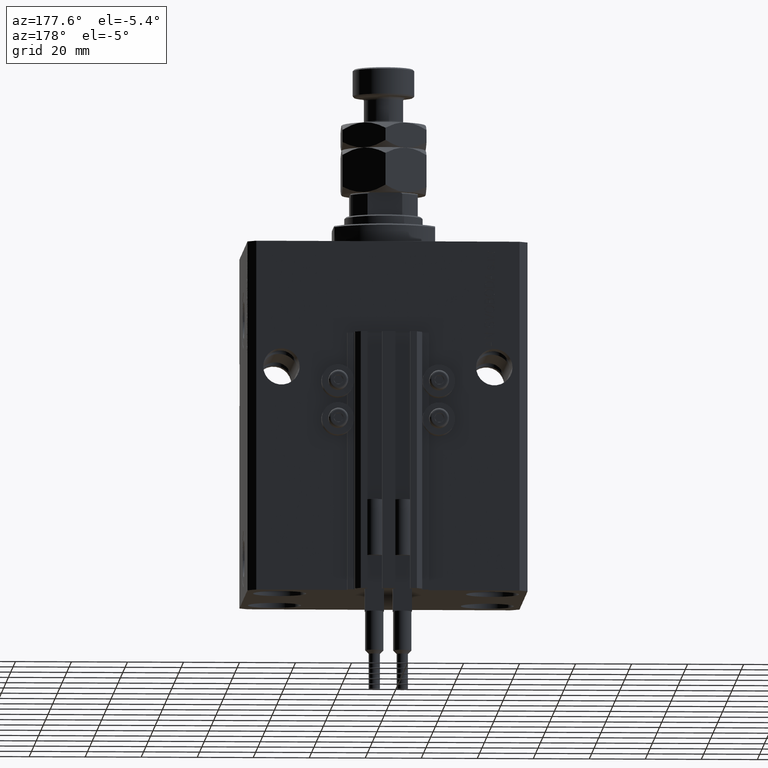
[diagram: clean part render]
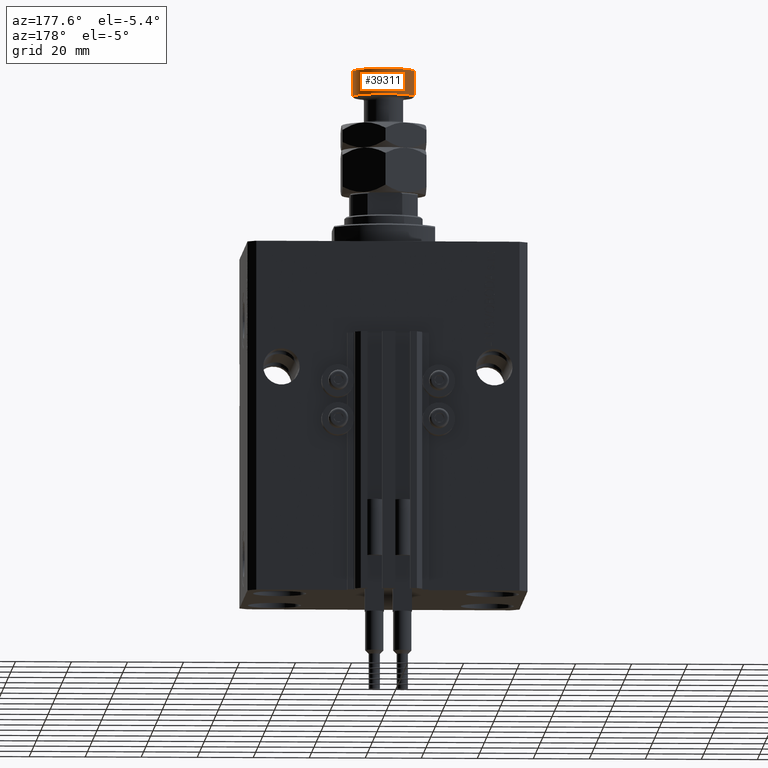
[diagram: same view with one face highlighted and labeled with its STEP entity id]
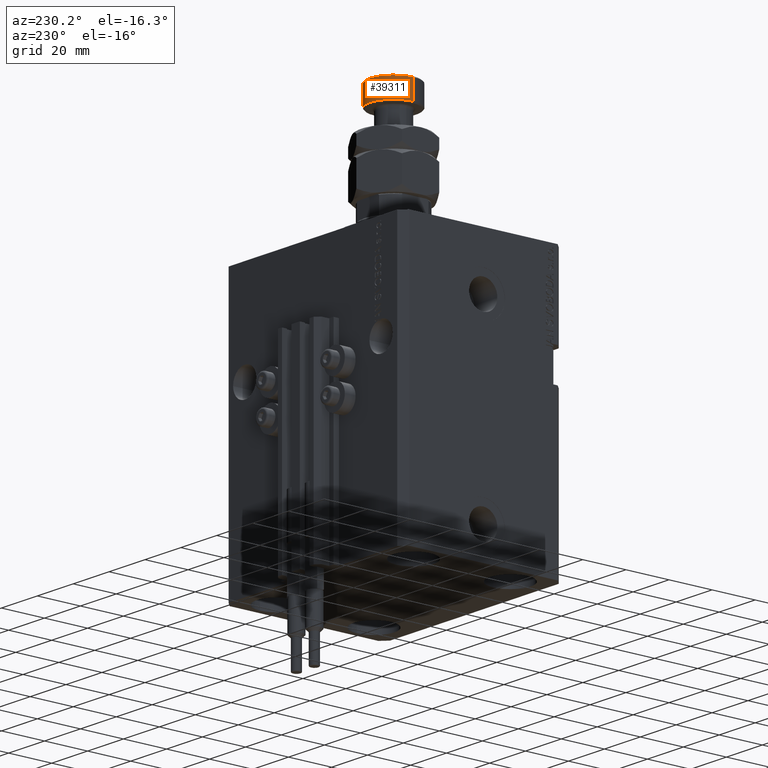
[diagram: same view with one face highlighted and labeled with its STEP entity id]
A machine part, auxiliary view. The second image highlights one B-rep face of the part: STEP entity #39311.
A second angle (auxiliary view) of the same face is appended — the face is thin or edge-on in the first view.
In plain terms, the highlighted cylindrical surface (edge-blend (fillet) strip) has radius 11 mm, axis along (-0, -0, -1).
Its self-contained STEP definition (entity closure, byte-faithful):
#2817 = CARTESIAN_POINT ( 'NONE',  ( 11.00000000000000000, 1.347111479062088405E-15, 45.00000000000000711 ) ) ;
#3383 = DIRECTION ( 'NONE',  ( -0.000000000000000000, -0.000000000000000000, -1.000000000000000000 ) ) ;
#3645 = FACE_OUTER_BOUND ( 'NONE', #38139, .T. ) ;
#4117 = VERTEX_POINT ( 'NONE', #43887 ) ;
#4826 = DIRECTION ( 'NONE',  ( -0.000000000000000000, -0.000000000000000000, 1.000000000000000000 ) ) ;
#12031 = CARTESIAN_POINT ( 'NONE',  ( 0.000000000000000000, 0.000000000000000000, 35.50000000000001421 ) ) ;
#15791 = CIRCLE ( 'NONE', #17388, 11.00000000000000000 ) ;
#15810 = CARTESIAN_POINT ( 'NONE',  ( 0.000000000000000000, 0.000000000000000000, 44.50000000000001421 ) ) ;
#16366 = DIRECTION ( 'NONE',  ( 1.000000000000000000, 0.000000000000000000, 0.000000000000000000 ) ) ;
#16691 = VERTEX_POINT ( 'NONE', #25845 ) ;
#17388 = AXIS2_PLACEMENT_3D ( 'NONE', #12031, #4826, #16366 ) ;
#17953 = LINE ( 'NONE', #2817, #23775 ) ;
#21260 = LINE ( 'NONE', #25618, #43418 ) ;
#22313 = CARTESIAN_POINT ( 'NONE',  ( -11.00000000000000000, 0.000000000000000000, 44.50000000000001421 ) ) ;
#23775 = VECTOR ( 'NONE', #33315, 1000.000000000000000 ) ;
#25618 = CARTESIAN_POINT ( 'NONE',  ( -11.00000000000000000, 0.000000000000000000, 45.00000000000000711 ) ) ;
#25845 = CARTESIAN_POINT ( 'NONE',  ( 11.00000000000000000, 1.347111479062088405E-15, 35.50000000000001421 ) ) ;
#26227 = VERTEX_POINT ( 'NONE', #36188 ) ;
#26371 = ORIENTED_EDGE ( 'NONE', *, *, #39436, .T. ) ;
#31427 = DIRECTION ( 'NONE',  ( 0.000000000000000000, 0.000000000000000000, -1.000000000000000000 ) ) ;
#33315 = DIRECTION ( 'NONE',  ( -0.000000000000000000, -0.000000000000000000, -1.000000000000000000 ) ) ;
#35139 = CYLINDRICAL_SURFACE ( 'NONE', #39292, 11.00000000000000000 ) ;
#35749 = DIRECTION ( 'NONE',  ( 1.000000000000000000, 0.000000000000000000, 0.000000000000000000 ) ) ;
#36188 = CARTESIAN_POINT ( 'NONE',  ( 11.00000000000000000, 1.347111479062088405E-15, 44.50000000000001421 ) ) ;
#36368 = EDGE_CURVE ( 'NONE', #16691, #4117, #15791, .T. ) ;
#37928 = EDGE_CURVE ( 'NONE', #41495, #26227, #42124, .T. ) ;
#38139 = EDGE_LOOP ( 'NONE', ( #45129, #26371, #48228, #43773 ) ) ;
#38470 = CARTESIAN_POINT ( 'NONE',  ( 0.000000000000000000, 0.000000000000000000, 45.00000000000000711 ) ) ;
#39292 = AXIS2_PLACEMENT_3D ( 'NONE', #38470, #3383, #42331 ) ;
#39311 = ADVANCED_FACE ( 'NONE', ( #3645 ), #35139, .T. ) ;
#39436 = EDGE_CURVE ( 'NONE', #26227, #16691, #17953, .T. ) ;
#41495 = VERTEX_POINT ( 'NONE', #22313 ) ;
#42124 = CIRCLE ( 'NONE', #47848, 11.00000000000000000 ) ;
#42331 = DIRECTION ( 'NONE',  ( -1.000000000000000000, 0.000000000000000000, 0.000000000000000000 ) ) ;
#43313 = EDGE_CURVE ( 'NONE', #41495, #4117, #21260, .T. ) ;
#43418 = VECTOR ( 'NONE', #45079, 1000.000000000000000 ) ;
#43773 = ORIENTED_EDGE ( 'NONE', *, *, #43313, .F. ) ;
#43887 = CARTESIAN_POINT ( 'NONE',  ( -11.00000000000000000, 0.000000000000000000, 35.50000000000001421 ) ) ;
#45079 = DIRECTION ( 'NONE',  ( -0.000000000000000000, -0.000000000000000000, -1.000000000000000000 ) ) ;
#45129 = ORIENTED_EDGE ( 'NONE', *, *, #37928, .T. ) ;
#47848 = AXIS2_PLACEMENT_3D ( 'NONE', #15810, #31427, #35749 ) ;
#48228 = ORIENTED_EDGE ( 'NONE', *, *, #36368, .T. ) ;